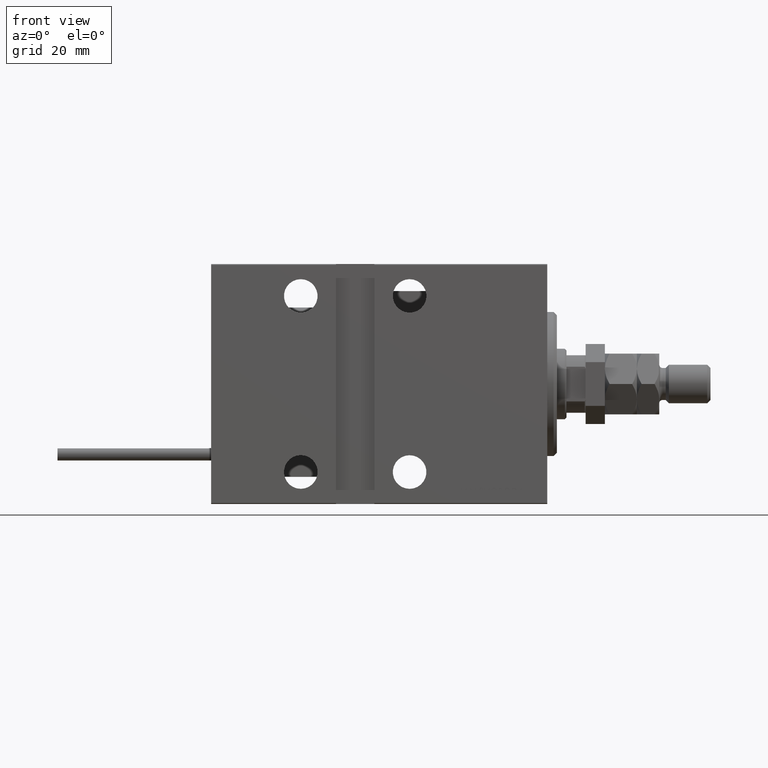
[diagram: clean part render]
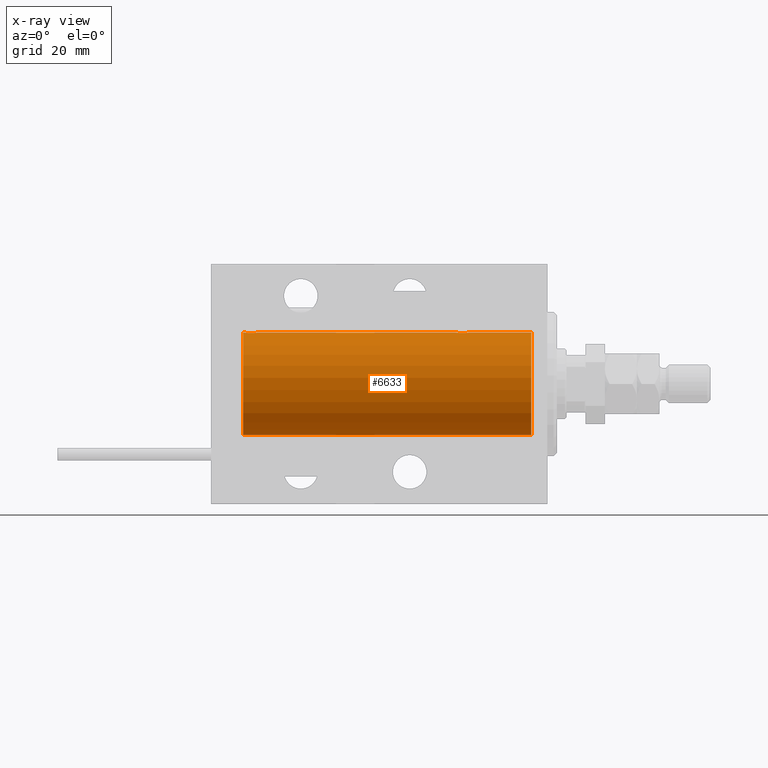
[diagram: x-ray — body ghosted, one internal face saturated and labeled with its STEP entity id]
A machine part, front view, then the same camera in x-ray: the body is ghosted and one INTERNAL B-rep face — a face not visible from any outside direction — is saturated and labeled: STEP entity #6633.
In plain terms, the highlighted cylindrical surface (partial cylindrical patch) has radius 16 mm, axis along (1, 0, -0).
Its self-contained STEP definition (entity closure, byte-faithful):
#168 = DIRECTION ( 'NONE',  ( -1.000000000000000000, -0.000000000000000000, -0.000000000000000000 ) ) ;
#557 = EDGE_CURVE ( 'NONE', #47195, #10958, #941, .T. ) ;
#631 = CARTESIAN_POINT ( 'NONE',  ( 24.76517329325045225, 1.003662148334361959, 15.96885838080210007 ) ) ;
#941 = LINE ( 'NONE', #36743, #44837 ) ;
#1600 = CARTESIAN_POINT ( 'NONE',  ( 94.09051504852097025, 1.219564485341765758, 15.95382484008322344 ) ) ;
#1639 = AXIS2_PLACEMENT_3D ( 'NONE', #17528, #33457, #27156 ) ;
#1649 = CARTESIAN_POINT ( 'NONE',  ( 25.17924175171067702, 1.507649250492130388, 15.92908549642226745 ) ) ;
#2112 = CARTESIAN_POINT ( 'NONE',  ( 91.98086902289892919, 1.935876924222073248, 15.88247600692093897 ) ) ;
#2915 = AXIS2_PLACEMENT_3D ( 'NONE', #48167, #36133, #4764 ) ;
#3607 = EDGE_CURVE ( 'NONE', #25272, #14756, #32574, .T. ) ;
#4538 = EDGE_LOOP ( 'NONE', ( #48942, #42260, #9776, #8496, #16671, #32613, #49750, #42342 ) ) ;
#4764 = DIRECTION ( 'NONE',  ( 0.000000000000000000, 0.000000000000000000, 1.000000000000000000 ) ) ;
#4801 = CARTESIAN_POINT ( 'NONE',  ( 25.61382242942729803, 1.797743958659254515, 15.89876304682112007 ) ) ;
#4822 = VECTOR ( 'NONE', #24740, 1000.000000000000000 ) ;
#5253 = CARTESIAN_POINT ( 'NONE',  ( 93.50659181559579736, 1.747750603376301948, 15.90457341008072412 ) ) ;
#5437 = CARTESIAN_POINT ( 'NONE',  ( 90.50000000000000000, -2.738767290746308786E-23, 16.00000000000000000 ) ) ;
#5511 = CARTESIAN_POINT ( 'NONE',  ( 90.99262839687571613, 1.321075116345873601, 15.94564302722883653 ) ) ;
#5560 = CARTESIAN_POINT ( 'NONE',  ( 27.72956111739783580, 1.598790766515148620, 15.92099550861380131 ) ) ;
#5778 = CARTESIAN_POINT ( 'NONE',  ( 90.70250071394960401, 0.8866640484200096761, 15.97587307151818159 ) ) ;
#5830 = CARTESIAN_POINT ( 'NONE',  ( 28.49999999999998579, 0.1322838750249257511, 16.00000000000000000 ) ) ;
#6029 = CARTESIAN_POINT ( 'NONE',  ( 90.50000000000000000, -2.738767290746308786E-23, 16.00000000000000000 ) ) ;
#6633 = ADVANCED_FACE ( 'NONE', ( #21435 ), #37386, .F. ) ;
#8496 = ORIENTED_EDGE ( 'NONE', *, *, #16368, .T. ) ;
#8981 = CARTESIAN_POINT ( 'NONE',  ( 28.43611326682063378, 0.5181437283162068086, 15.99211983514074298 ) ) ;
#9193 = CARTESIAN_POINT ( 'NONE',  ( 91.85613031966988729, 1.898058445420878648, 15.88709929148890510 ) ) ;
#9440 = CARTESIAN_POINT ( 'NONE',  ( 90.90998471899878552, 1.220169175415117158, 15.95377581882983975 ) ) ;
#9488 = CARTESIAN_POINT ( 'NONE',  ( 25.85613031966986952, 1.898058445420883311, 15.88709929148890510 ) ) ;
#9695 = CARTESIAN_POINT ( 'NONE',  ( 91.61382242942730159, 1.797743958659247854, 15.89876304682112007 ) ) ;
#9745 = CARTESIAN_POINT ( 'NONE',  ( 27.02531756459403667, 1.947280337074160927, 15.88137861827786779 ) ) ;
#9776 = ORIENTED_EDGE ( 'NONE', *, *, #41561, .T. ) ;
#10958 = VERTEX_POINT ( 'NONE', #12766 ) ;
#12642 = CARTESIAN_POINT ( 'NONE',  ( 28.23568098498261492, 1.002241074716280655, 15.96895041604536480 ) ) ;
#12766 = CARTESIAN_POINT ( 'NONE',  ( 5.000000000000004441, 0.000000000000000000, 16.00000000000000000 ) ) ;
#13356 = CARTESIAN_POINT ( 'NONE',  ( 92.23748416992103216, 1.987008272775786066, 15.87616016863256974 ) ) ;
#13403 = CARTESIAN_POINT ( 'NONE',  ( 28.29713414748220046, 0.8874076679346754037, 15.97583181162460697 ) ) ;
#13604 = CARTESIAN_POINT ( 'NONE',  ( 94.50000000000000000, 3.590027768233731054E-15, 16.00000000000000000 ) ) ;
#14129 = CARTESIAN_POINT ( 'NONE',  ( 92.37014691649503106, 2.000047931387137101, 15.87450182760080253 ) ) ;
#14537 = CARTESIAN_POINT ( 'NONE',  ( 95.00000000000000000, 0.000000000000000000, 16.00000000000000000 ) ) ;
#14756 = VERTEX_POINT ( 'NONE', #49523 ) ;
#16074 = B_SPLINE_CURVE_WITH_KNOTS ( 'NONE', 3,
 ( #13604, #45515, #37140, #29787, #49433, #33215, #36893, #1600, #33729, #17802, #5253, #17547, #37915, #14129, #13356, #2112, #9193, #9695, #29532, #29032, #18059, #5511, #9440, #33992, #5778, #30054, #46038, #29285, #25889, #6029 ),
 .UNSPECIFIED., .F., .F.,
 ( 4, 2, 2, 2, 2, 2, 2, 2, 2, 2, 2, 2, 2, 2, 4 ),
 ( 3.488315472694475996E-18, 0.0003911894522871309362, 0.0007823789045742584030, 0.001173568356861385761, 0.001564757809148513337, 0.002347136713722738129, 0.003129515618296963356, 0.003520705070584075318, 0.003911894522871188148, 0.004303083975158299677, 0.004694273427445412074, 0.005085462879732524470, 0.005476652332019635999, 0.005867841784306749263, 0.006259031236593860792 ),
 .UNSPECIFIED. ) ;
#16121 = CARTESIAN_POINT ( 'NONE',  ( 95.00000000000000000, 0.000000000000000000, 16.00000000000000000 ) ) ;
#16368 = EDGE_CURVE ( 'NONE', #46123, #25272, #16074, .T. ) ;
#16564 = CARTESIAN_POINT ( 'NONE',  ( 24.60216273501104567, 0.6445079780200539954, 15.98747331501412461 ) ) ;
#16671 = ORIENTED_EDGE ( 'NONE', *, *, #3607, .T. ) ;
#16824 = CARTESIAN_POINT ( 'NONE',  ( 26.23748416992101085, 1.987008272775788731, 15.87616016863256618 ) ) ;
#17074 = CARTESIAN_POINT ( 'NONE',  ( 28.09051504852099512, 1.219564485341767091, 15.95382484008323409 ) ) ;
#17528 = CARTESIAN_POINT ( 'NONE',  ( 95.00000000000000000, 0.000000000000000000, 0.000000000000000000 ) ) ;
#17547 = CARTESIAN_POINT ( 'NONE',  ( 93.02531756459404733, 1.947280337074161816, 15.88137861827787489 ) ) ;
#17595 = CARTESIAN_POINT ( 'NONE',  ( 24.70250071394960045, 0.8866640484200088990, 15.97587307151817448 ) ) ;
#17802 = CARTESIAN_POINT ( 'NONE',  ( 93.72956111739786422, 1.598790766515141071, 15.92099550861381019 ) ) ;
#18059 = CARTESIAN_POINT ( 'NONE',  ( 91.17924175171070544, 1.507649250492122173, 15.92908549642227101 ) ) ;
#18233 = CARTESIAN_POINT ( 'NONE',  ( 5.000000000000004441, 0.000000000000000000, 0.000000000000000000 ) ) ;
#18491 = CARTESIAN_POINT ( 'NONE',  ( 94.50000000000000000, 3.590027768233731054E-15, 16.00000000000000000 ) ) ;
#18780 = CARTESIAN_POINT ( 'NONE',  ( 95.00000000000000000, 1.959434878635765131E-15, -16.00000000000000000 ) ) ;
#19042 = DIRECTION ( 'NONE',  ( -1.000000000000000000, -0.000000000000000000, -0.000000000000000000 ) ) ;
#19580 = B_SPLINE_CURVE_WITH_KNOTS ( 'NONE', 3,
 ( #29331, #5830, #45313, #8981, #21003, #13403, #12642, #17074, #28822, #5560, #45567, #9745, #37187, #40883, #16824, #33001, #9488, #4801, #25422, #49229, #1649, #32500, #25681, #631, #17595, #16564, #48718, #48469, #33523, #25169 ),
 .UNSPECIFIED., .F., .F.,
 ( 4, 2, 2, 2, 2, 2, 2, 2, 2, 2, 2, 2, 2, 2, 4 ),
 ( 1.745049934674283425E-18, 0.0003911894522871204737, 0.0007823789045742392126, 0.001173568356861357789, 0.001564757809148476691, 0.002347136713722706037, 0.003129515618296936034, 0.003520705070584051466, 0.003911894522871166464, 0.004303083975158282330, 0.004694273427445396461, 0.005085462879732512327, 0.005476652332019627326, 0.005867841784306743191, 0.006259031236593858190 ),
 .UNSPECIFIED. ) ;
#20412 = EDGE_CURVE ( 'NONE', #10958, #22053, #34991, .T. ) ;
#21003 = CARTESIAN_POINT ( 'NONE',  ( 28.39758870055591444, 0.6452446332038146437, 15.98744362947834574 ) ) ;
#21435 = FACE_OUTER_BOUND ( 'NONE', #4538, .T. ) ;
#21654 = VERTEX_POINT ( 'NONE', #49786 ) ;
#22053 = VERTEX_POINT ( 'NONE', #49724 ) ;
#24695 = EDGE_CURVE ( 'NONE', #14756, #47195, #19580, .T. ) ;
#24740 = DIRECTION ( 'NONE',  ( -1.000000000000000000, -0.000000000000000000, -0.000000000000000000 ) ) ;
#25169 = CARTESIAN_POINT ( 'NONE',  ( 24.50000000000000000, -2.739635037742051899E-23, 16.00000000000000000 ) ) ;
#25272 = VERTEX_POINT ( 'NONE', #5437 ) ;
#25422 = CARTESIAN_POINT ( 'NONE',  ( 25.49688752964961225, 1.735145127817741439, 15.90580292899658410 ) ) ;
#25424 = CIRCLE ( 'NONE', #2915, 16.00000000000000000 ) ;
#25681 = CARTESIAN_POINT ( 'NONE',  ( 24.90998471899876066, 1.220169175415113827, 15.95377581882983442 ) ) ;
#25889 = CARTESIAN_POINT ( 'NONE',  ( 90.49999999999998579, 0.1305944228192297552, 16.00000000000000000 ) ) ;
#27156 = DIRECTION ( 'NONE',  ( 0.000000000000000000, 0.000000000000000000, 1.000000000000000000 ) ) ;
#28822 = CARTESIAN_POINT ( 'NONE',  ( 28.00610712468246177, 1.322357532253821910, 15.94553003295878391 ) ) ;
#29032 = CARTESIAN_POINT ( 'NONE',  ( 91.28032342557723666, 1.590393755196000347, 15.92092783521424693 ) ) ;
#29285 = CARTESIAN_POINT ( 'NONE',  ( 90.51309075167873175, 0.2632563459770824177, 15.99834873924246459 ) ) ;
#29331 = CARTESIAN_POINT ( 'NONE',  ( 28.49999999999999645, -1.207828523974853969E-15, 16.00000000000000000 ) ) ;
#29532 = CARTESIAN_POINT ( 'NONE',  ( 91.49688752964959804, 1.735145127817741884, 15.90580292899658410 ) ) ;
#29787 = CARTESIAN_POINT ( 'NONE',  ( 94.43611326682062668, 0.5181437283162084739, 15.99211983514074653 ) ) ;
#30054 = CARTESIAN_POINT ( 'NONE',  ( 90.60216273501103501, 0.6445079780200546615, 15.98747331501412106 ) ) ;
#30547 = CARTESIAN_POINT ( 'NONE',  ( 95.00000000000000000, 0.000000000000000000, 16.00000000000000000 ) ) ;
#31639 = AXIS2_PLACEMENT_3D ( 'NONE', #18233, #46730, #50132 ) ;
#32500 = CARTESIAN_POINT ( 'NONE',  ( 24.99262839687570903, 1.321075116345881595, 15.94564302722883298 ) ) ;
#32574 = LINE ( 'NONE', #16121, #4822 ) ;
#32613 = ORIENTED_EDGE ( 'NONE', *, *, #24695, .T. ) ;
#33001 = CARTESIAN_POINT ( 'NONE',  ( 25.98086902289887234, 1.935876924222074358, 15.88247600692093187 ) ) ;
#33215 = CARTESIAN_POINT ( 'NONE',  ( 94.29713414748218270, 0.8874076679346750707, 15.97583181162461052 ) ) ;
#33457 = DIRECTION ( 'NONE',  ( -1.000000000000000000, -0.000000000000000000, -0.000000000000000000 ) ) ;
#33523 = CARTESIAN_POINT ( 'NONE',  ( 24.49999999999999289, 0.1305944228192297274, 15.99999999999999645 ) ) ;
#33623 = LINE ( 'NONE', #14537, #50638 ) ;
#33657 = EDGE_CURVE ( 'NONE', #47187, #21654, #25424, .T. ) ;
#33729 = CARTESIAN_POINT ( 'NONE',  ( 94.00610712468248664, 1.322357532253812806, 15.94553003295878391 ) ) ;
#33992 = CARTESIAN_POINT ( 'NONE',  ( 90.76517329325047001, 1.003662148334365289, 15.96885838080210718 ) ) ;
#34991 = CIRCLE ( 'NONE', #31639, 16.00000000000000000 ) ;
#36133 = DIRECTION ( 'NONE',  ( -1.000000000000000000, 0.000000000000000000, 0.000000000000000000 ) ) ;
#36743 = CARTESIAN_POINT ( 'NONE',  ( 95.00000000000000000, 0.000000000000000000, 16.00000000000000000 ) ) ;
#36893 = CARTESIAN_POINT ( 'NONE',  ( 94.23568098498257939, 1.002241074716279989, 15.96895041604535415 ) ) ;
#36907 = EDGE_CURVE ( 'NONE', #21654, #22053, #50164, .T. ) ;
#37140 = CARTESIAN_POINT ( 'NONE',  ( 94.48700524008410184, 0.2623312429553332215, 15.99836091803360105 ) ) ;
#37187 = CARTESIAN_POINT ( 'NONE',  ( 26.76191462762254858, 1.999903730784154066, 15.87451999516785861 ) ) ;
#37386 = CYLINDRICAL_SURFACE ( 'NONE', #1639, 16.00000000000000000 ) ;
#37915 = CARTESIAN_POINT ( 'NONE',  ( 92.76191462762255924, 1.999903730784150957, 15.87451999516786216 ) ) ;
#38759 = VECTOR ( 'NONE', #19042, 1000.000000000000000 ) ;
#40883 = CARTESIAN_POINT ( 'NONE',  ( 26.37014691649501685, 2.000047931387139322, 15.87450182760079187 ) ) ;
#41561 = EDGE_CURVE ( 'NONE', #47187, #46123, #33623, .T. ) ;
#42260 = ORIENTED_EDGE ( 'NONE', *, *, #33657, .F. ) ;
#42342 = ORIENTED_EDGE ( 'NONE', *, *, #20412, .T. ) ;
#44837 = VECTOR ( 'NONE', #168, 1000.000000000000000 ) ;
#45313 = CARTESIAN_POINT ( 'NONE',  ( 28.48700524008413382, 0.2623312429553315561, 15.99836091803360105 ) ) ;
#45515 = CARTESIAN_POINT ( 'NONE',  ( 94.50000000000002842, 0.1322838750249261119, 16.00000000000000000 ) ) ;
#45567 = CARTESIAN_POINT ( 'NONE',  ( 27.50659181559580446, 1.747750603376297729, 15.90457341008072056 ) ) ;
#46038 = CARTESIAN_POINT ( 'NONE',  ( 90.56430947073874904, 0.5198215460038719815, 15.99206840425679310 ) ) ;
#46123 = VERTEX_POINT ( 'NONE', #18491 ) ;
#46534 = CARTESIAN_POINT ( 'NONE',  ( 24.50000000000000000, -2.739635037742051899E-23, 16.00000000000000000 ) ) ;
#46730 = DIRECTION ( 'NONE',  ( -1.000000000000000000, 0.000000000000000000, 0.000000000000000000 ) ) ;
#47187 = VERTEX_POINT ( 'NONE', #30547 ) ;
#47195 = VERTEX_POINT ( 'NONE', #46534 ) ;
#48167 = CARTESIAN_POINT ( 'NONE',  ( 95.00000000000000000, 0.000000000000000000, 0.000000000000000000 ) ) ;
#48469 = CARTESIAN_POINT ( 'NONE',  ( 24.51309075167874596, 0.2632563459770819736, 15.99834873924246459 ) ) ;
#48718 = CARTESIAN_POINT ( 'NONE',  ( 24.56430947073869930, 0.5198215460038717595, 15.99206840425678955 ) ) ;
#48942 = ORIENTED_EDGE ( 'NONE', *, *, #36907, .F. ) ;
#49229 = CARTESIAN_POINT ( 'NONE',  ( 25.28032342557723311, 1.590393755196000347, 15.92092783521424337 ) ) ;
#49433 = CARTESIAN_POINT ( 'NONE',  ( 94.39758870055594286, 0.6452446332038145327, 15.98744362947834929 ) ) ;
#49523 = CARTESIAN_POINT ( 'NONE',  ( 28.49999999999999645, -1.207828523974853969E-15, 16.00000000000000000 ) ) ;
#49724 = CARTESIAN_POINT ( 'NONE',  ( 5.000000000000004441, 1.959434878635765131E-15, -16.00000000000000000 ) ) ;
#49750 = ORIENTED_EDGE ( 'NONE', *, *, #557, .T. ) ;
#49786 = CARTESIAN_POINT ( 'NONE',  ( 95.00000000000000000, 1.959434878635765131E-15, -16.00000000000000000 ) ) ;
#49844 = DIRECTION ( 'NONE',  ( -1.000000000000000000, -0.000000000000000000, -0.000000000000000000 ) ) ;
#50132 = DIRECTION ( 'NONE',  ( 0.000000000000000000, 0.000000000000000000, 1.000000000000000000 ) ) ;
#50164 = LINE ( 'NONE', #18780, #38759 ) ;
#50638 = VECTOR ( 'NONE', #49844, 1000.000000000000000 ) ;